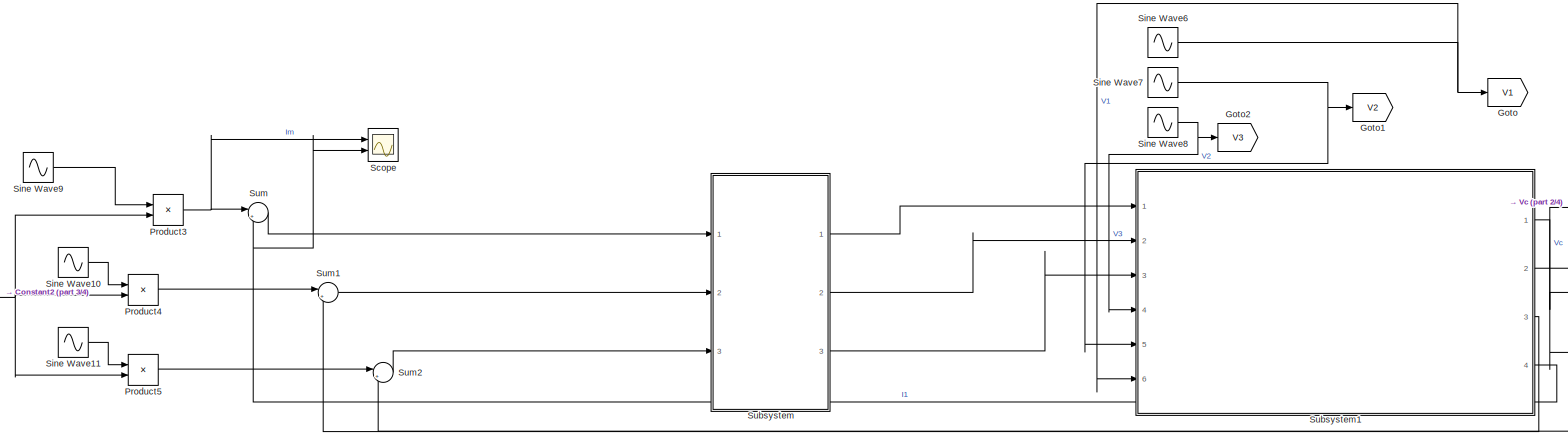
[diagram: root canvas - part 1/4, center side, full height]
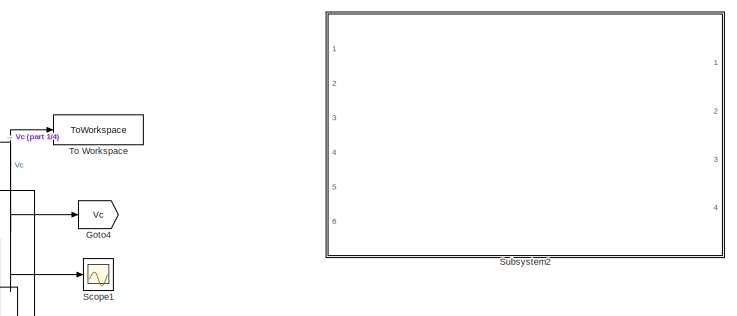
[diagram: root canvas - part 2/4, middle right region]
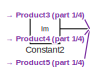
[diagram: root canvas - part 3/4, bottom left region]
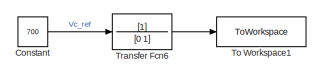
[diagram: root canvas - part 4/4, bottom left region]
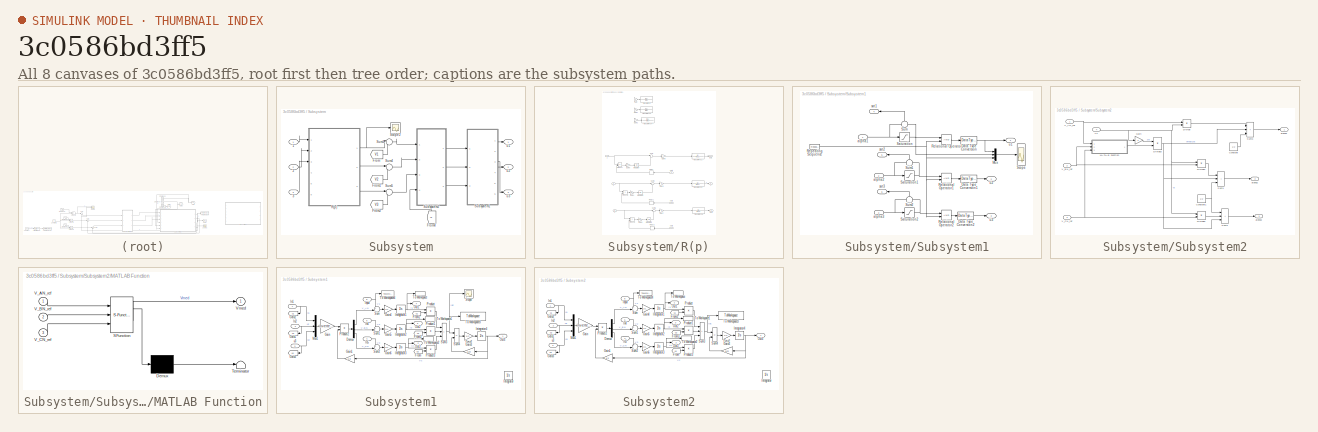
[diagram: thumbnail index - all 8 canvases of the model, root first then tree order]
MODEL slx_3c0586bd3ff5
KIND model
CONFIG AbsTol = auto
CONFIG EnableMultiTasking = off
CONFIG FixedStep = 1e-6
CONFIG MaxStep = auto
CONFIG MinStep = auto
CONFIG RelTol = 1e-3
CONFIG SampleTimeConstraint = Unconstrained
CONFIG Solver = ode8
CONFIG SolverName = ode8
CONFIG StartTime = 0.0
CONFIG StopTime = 0.1
BLOCK [Constant] Constant
  Commented = on
  Value = 700
BLOCK [Constant] Constant2
  Value = Im
BLOCK [Goto] Goto
  GotoTag = V1
BLOCK [Goto] Goto1
  GotoTag = V2
BLOCK [Goto] Goto2
  GotoTag = V3
BLOCK [Goto] Goto4
  GotoTag = Vc
BLOCK [Product] Product3
  Ports = [2, 1]
BLOCK [Product] Product4
  Ports = [2, 1]
BLOCK [Product] Product5
  Ports = [2, 1]
BLOCK [Scope] Scope
  Floating = off
  NumInputPorts = 2
  Ports = [2]
  ScopeSpecificationString = Simulink.scopes.TimeScopeBlockCfg('CurrentConfiguration', extmgr.ConfigurationSet(extmgr.Configuration('Core','General UI',true),extmgr.Configuration('Core','Source UI',true),extmgr.Configuration('Sources','WiredSimulink',true),extmgr.Configuration('Visuals','Time Domain',true,'SerializedDisplays',{struct('MinYLimReal','-133.0737','MaxYLimReal','133.19821','YLabelReal','','MinYLimMag',' 0.00000','...<+1454ch>
BLOCK [Scope] Scope1
  Floating = off
  NumInputPorts = 1
  Ports = [1]
  ScopeSpecificationString = Simulink.scopes.TimeScopeBlockCfg('CurrentConfiguration', extmgr.ConfigurationSet(extmgr.Configuration('Core','General UI',true),extmgr.Configuration('Core','Source UI',true),extmgr.Configuration('Sources','WiredSimulink',true,'DataLoggingVariableName','ScopeData1'),extmgr.Configuration('Visuals','Time Domain',true,'SerializedDisplays',{struct('MinYLimReal','487.52145','MaxYLimReal','729.00604','Y...<+1445ch>
BLOCK [Sin] Sine Wave10
  Frequency = 2*50*pi
  Phase = -2*pi/3
  Ports = [0, 1]
  SampleTime = 0
BLOCK [Sin] Sine Wave11
  Frequency = 2*50*pi
  Phase = -4*pi/3
  Ports = [0, 1]
  SampleTime = 0
BLOCK [Sin] Sine Wave6
  Amplitude = V*sqrt(2)
  Frequency = 2*50*pi
  Ports = [0, 1]
  SampleTime = 0
BLOCK [Sin] Sine Wave7
  Amplitude = V*sqrt(2)
  Frequency = 2*50*pi
  Phase = -2*pi/3
  Ports = [0, 1]
  SampleTime = 0
BLOCK [Sin] Sine Wave8
  Amplitude = V*sqrt(2)
  Frequency = 2*50*pi
  Phase = -4*pi/3
  Ports = [0, 1]
  SampleTime = 0
BLOCK [Sin] Sine Wave9
  Frequency = 2*50*pi
  Ports = [0, 1]
  SampleTime = 0
BLOCK [SubSystem] Subsystem
  Ports = [3, 3]
BLOCK [Inport] Subsystem/1
BLOCK [Inport] Subsystem/2
  Port = 2
BLOCK [Inport] Subsystem/3
  Port = 3
BLOCK [From] Subsystem/From
  GotoTag = V1
BLOCK [From] Subsystem/From1
  GotoTag = V2
BLOCK [From] Subsystem/From2
  GotoTag = V3
BLOCK [From] Subsystem/From4
  GotoTag = Vc
BLOCK [SubSystem] Subsystem/R(p)
  Ports = [6, 3]
BLOCK [Inport] Subsystem/R(p)/1
BLOCK [Inport] Subsystem/R(p)/2
  Port = 2
BLOCK [Inport] Subsystem/R(p)/3
  Port = 3
BLOCK [Outport] Subsystem/R(p)/4
  IconDisplay = Signal name
  Port = 2
BLOCK [Gain] Subsystem/R(p)/Gain
  Commented = on
  Gain = K
BLOCK [Gain] Subsystem/R(p)/Gain1
  Commented = on
  Gain = K
BLOCK [Gain] Subsystem/R(p)/Gain2
  Commented = on
  Gain = K
BLOCK [Gain] Subsystem/R(p)/Gain3
  Gain = K
BLOCK [Gain] Subsystem/R(p)/Gain4
  Gain = 1/Ti
BLOCK [Gain] Subsystem/R(p)/Gain5
  Gain = K
BLOCK [Gain] Subsystem/R(p)/Gain6
  Gain = 1/Ti
BLOCK [Gain] Subsystem/R(p)/Gain7
  Gain = K
BLOCK [Gain] Subsystem/R(p)/Gain8
  Gain = 1/Ti
BLOCK [Integrator] Subsystem/R(p)/Integrator
  InitialCondition = 1
  Ports = [1, 1]
BLOCK [Integrator] Subsystem/R(p)/Integrator1
  InitialCondition = 1
  Ports = [1, 1]
BLOCK [Integrator] Subsystem/R(p)/Integrator2
  Ports = [1, 1]
BLOCK [Outport] Subsystem/R(p)/Out1
BLOCK [Outport] Subsystem/R(p)/Out3
  Port = 3
BLOCK [Product] Subsystem/R(p)/Product
  Ports = [2, 1]
BLOCK [Product] Subsystem/R(p)/Product1
  Ports = [2, 1]
BLOCK [Product] Subsystem/R(p)/Product3
  Ports = [2, 1]
BLOCK [Relay] Subsystem/R(p)/Relay
  OffSwitchValue = -1e-4
  OnSwitchValue = 1e-4
BLOCK [Relay] Subsystem/R(p)/Relay1
  OffSwitchValue = -1e-4
  OnSwitchValue = 1e-4
BLOCK [Relay] Subsystem/R(p)/Relay2
  OffSwitchValue = -1e-4
  OnSwitchValue = 1e-4
BLOCK [Sum] Subsystem/R(p)/Sum
  Inputs = |++
  Ports = [2, 1]
BLOCK [Sum] Subsystem/R(p)/Sum3
  Inputs = |++
  Ports = [2, 1]
BLOCK [Sum] Subsystem/R(p)/Sum6
  Inputs = |++
  Ports = [2, 1]
BLOCK [TransferFcn] Subsystem/R(p)/Transfer Fcn
  Commented = on
  Denominator = [Ti 0]
  Numerator = [Ti 1]
BLOCK [TransferFcn] Subsystem/R(p)/Transfer Fcn1
  Denominator = [Ta 1]
BLOCK [TransferFcn] Subsystem/R(p)/Transfer Fcn2
  Commented = on
  Denominator = [Ti 0]
  Numerator = [Ti 1]
BLOCK [TransferFcn] Subsystem/R(p)/Transfer Fcn3
  Denominator = [Ta 1]
BLOCK [TransferFcn] Subsystem/R(p)/Transfer Fcn4
  Commented = on
  Denominator = [Ti 0]
  Numerator = [Ti 1]
BLOCK [TransferFcn] Subsystem/R(p)/Transfer Fcn5
  Denominator = [Ta 1]
BLOCK [Inport] Subsystem/R(p)/sat1
  Port = 6
BLOCK [Inport] Subsystem/R(p)/sat2
  Port = 5
BLOCK [Inport] Subsystem/R(p)/sat3
  Port = 4
BLOCK [Scope] Subsystem/Scope2
  Floating = off
  NumInputPorts = 1
  Ports = [1]
  ScopeSpecificationString = Simulink.scopes.TimeScopeBlockCfg('CurrentConfiguration', extmgr.ConfigurationSet(extmgr.Configuration('Core','General UI',true),extmgr.Configuration('Core','Source UI',true),extmgr.Configuration('Sources','WiredSimulink',true,'DataLoggingVariableName','ScopeData3'),extmgr.Configuration('Visuals','Time Domain',true,'SerializedDisplays',{struct('MinYLimReal','-161.67797','MaxYLimReal','125.99894','...<+1447ch>
BLOCK [SubSystem] Subsystem/Subsystem1
  Ports = [3, 6]
BLOCK [DataTypeConversion] Subsystem/Subsystem1/Data Type Conversion
  RndMeth = Floor
  SaturateOnIntegerOverflow = off
BLOCK [DataTypeConversion] Subsystem/Subsystem1/Data Type Conversion1
  RndMeth = Floor
  SaturateOnIntegerOverflow = off
BLOCK [DataTypeConversion] Subsystem/Subsystem1/Data Type Conversion2
  RndMeth = Floor
  SaturateOnIntegerOverflow = off
BLOCK [Mux] Subsystem/Subsystem1/Mux
  DisplayOption = bar
  Inputs = 3
  Ports = [3, 1]
BLOCK [RelationalOperator] Subsystem/Subsystem1/Relational Operator
  InputSameDT = off
  OutDataTypeStr = boolean
  Ports = [2, 1]
  RndMeth = Simplest
BLOCK [RelationalOperator] Subsystem/Subsystem1/Relational Operator1
  InputSameDT = off
  OutDataTypeStr = boolean
  Ports = [2, 1]
  RndMeth = Simplest
BLOCK [RelationalOperator] Subsystem/Subsystem1/Relational Operator2
  InputSameDT = off
  OutDataTypeStr = boolean
  Ports = [2, 1]
  RndMeth = Simplest
BLOCK [Reference] Subsystem/Subsystem1/Repeating Sequence  REF=simulink/Sources/Repeating
Sequence
  Ports = [0, 1]
  SourceBlock = simulink/Sources/Repeating\nSequence
  SourceType = Repeating table
BLOCK [Saturate] Subsystem/Subsystem1/Saturation
  LowerLimit = 0
  UpperLimit = 1
BLOCK [Saturate] Subsystem/Subsystem1/Saturation1
  LowerLimit = 0
  UpperLimit = 1
BLOCK [Saturate] Subsystem/Subsystem1/Saturation2
  LowerLimit = 0
  UpperLimit = 1
BLOCK [Scope] Subsystem/Subsystem1/Scope
  Floating = off
  NumInputPorts = 1
  Ports = [1]
  ScopeSpecificationString = Simulink.scopes.TimeScopeBlockCfg('CurrentConfiguration', extmgr.ConfigurationSet(extmgr.Configuration('Core','General UI',true),extmgr.Configuration('Core','Source UI',true),extmgr.Configuration('Sources','WiredSimulink',true,'DataLoggingVariableName','ScopeData2'),extmgr.Configuration('Visuals','Time Domain',true,'SerializedDisplays',{struct('MinYLimReal','-0.125','MaxYLimReal','1.125','YLabelRe...<+1537ch>
BLOCK [Sum] Subsystem/Subsystem1/Sum
  Inputs = +-
  Ports = [2, 1]
BLOCK [Sum] Subsystem/Subsystem1/Sum1
  Inputs = +-
  Ports = [2, 1]
BLOCK [Sum] Subsystem/Subsystem1/Sum2
  Inputs = +-
  Ports = [2, 1]
BLOCK [Inport] Subsystem/Subsystem1/alpha1
BLOCK [Inport] Subsystem/Subsystem1/alpha2
  Port = 2
BLOCK [Inport] Subsystem/Subsystem1/alpha3
  Port = 3
BLOCK [Outport] Subsystem/Subsystem1/sat1
  Port = 4
BLOCK [Outport] Subsystem/Subsystem1/sat2
  Port = 5
BLOCK [Outport] Subsystem/Subsystem1/sat3
  Port = 6
BLOCK [Outport] Subsystem/Subsystem1/u1
BLOCK [Outport] Subsystem/Subsystem1/u2
  Port = 2
BLOCK [Outport] Subsystem/Subsystem1/u3
  Port = 3
BLOCK [SubSystem] Subsystem/Subsystem2
  Ports = [4, 3]
BLOCK [Constant] Subsystem/Subsystem2/Constant
  Value = 1/2
BLOCK [Constant] Subsystem/Subsystem2/Constant1
  Value = 1/2
BLOCK [Product] Subsystem/Subsystem2/Divide
  Inputs = */
  Ports = [2, 1]
BLOCK [Product] Subsystem/Subsystem2/Divide1
  Inputs = /*
  Ports = [2, 1]
BLOCK [Product] Subsystem/Subsystem2/Divide2
  Inputs = /*
  Ports = [2, 1]
BLOCK [Product] Subsystem/Subsystem2/Divide3
  Inputs = /*
  Ports = [2, 1]
BLOCK [Gain] Subsystem/Subsystem2/Gain
  Gain = 2
BLOCK [SubSystem] Subsystem/Subsystem2/MATLAB Function
  ErrorFcn = Stateflow.Translate.translate
  PermitHierarchicalResolution = ExplicitOnly
  Ports = [3, 1]
  SFBlockType = MATLAB Function
  TreatAsAtomicUnit = on
BLOCK [Demux] Subsystem/Subsystem2/MATLAB Function/ Demux 
  Outputs = 1
  Ports = [1, 1]
BLOCK [S-Function] Subsystem/Subsystem2/MATLAB Function/ SFunction 
  EnableBusSupport = off
  FunctionName = sf_sfun
  PortCounts = [3 2]
  Ports = [3, 2]
  SFcnIsStateOwnerBlock = off
  SFunctionDeploymentMode = off
  Tag = Stateflow S-Function Redresseur_MLI_3Ph_MLI_antiwindup_relay 2
BLOCK [Terminator] Subsystem/Subsystem2/MATLAB Function/ Terminator 
BLOCK [Inport] Subsystem/Subsystem2/MATLAB Function/V_AN_ref
BLOCK [Inport] Subsystem/Subsystem2/MATLAB Function/V_BN_ref
  Port = 2
BLOCK [Inport] Subsystem/Subsystem2/MATLAB Function/V_CN_ref
  Port = 3
BLOCK [Outport] Subsystem/Subsystem2/MATLAB Function/Vmed
BLOCK [Sum] Subsystem/Subsystem2/Sum1
  IconShape = rectangular
  Inputs = +++
  Ports = [3, 1]
BLOCK [Sum] Subsystem/Subsystem2/Sum2
  IconShape = rectangular
  Inputs = +++
  Ports = [3, 1]
BLOCK [Sum] Subsystem/Subsystem2/Sum3
  IconShape = rectangular
  Inputs = +++
  Ports = [3, 1]
BLOCK [Inport] Subsystem/Subsystem2/V_AN_ref
BLOCK [Inport] Subsystem/Subsystem2/V_BN_ref
  Port = 2
BLOCK [Inport] Subsystem/Subsystem2/V_CN_ref
  Port = 3
BLOCK [Inport] Subsystem/Subsystem2/Vc
  Port = 4
BLOCK [Outport] Subsystem/Subsystem2/alpha1
BLOCK [Outport] Subsystem/Subsystem2/alpha2
  Port = 2
BLOCK [Outport] Subsystem/Subsystem2/alpha3
  Port = 3
BLOCK [Sum] Subsystem/Sum3
  Inputs = |-+
  Ports = [2, 1]
BLOCK [Sum] Subsystem/Sum4
  Inputs = |-+
  Ports = [2, 1]
BLOCK [Sum] Subsystem/Sum5
  Inputs = |-+
  Ports = [2, 1]
BLOCK [Outport] Subsystem/u1
BLOCK [Outport] Subsystem/u2
  Port = 2
BLOCK [Outport] Subsystem/u3
  Port = 3
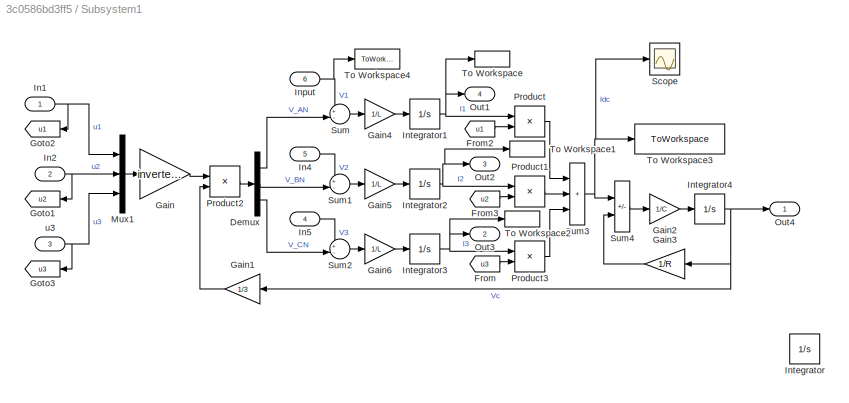
BLOCK [SubSystem] Subsystem1
  Ports = [6, 4]
BLOCK [Demux] Subsystem1/Demux
  Outputs = 3
  Ports = [1, 3]
BLOCK [From] Subsystem1/From
  GotoTag = u3
BLOCK [From] Subsystem1/From2
  GotoTag = u1
BLOCK [From] Subsystem1/From3
  GotoTag = u2
BLOCK [Gain] Subsystem1/Gain
  Gain = inverter_matrix
  Multiplication = Matrix(K*u)
BLOCK [Gain] Subsystem1/Gain1
  Gain = 1/3
BLOCK [Gain] Subsystem1/Gain2
  Gain = 1/C
BLOCK [Gain] Subsystem1/Gain3
  Gain = 1/R
BLOCK [Gain] Subsystem1/Gain4
  Gain = 1/L
BLOCK [Gain] Subsystem1/Gain5
  Gain = 1/L
BLOCK [Gain] Subsystem1/Gain6
  Gain = 1/L
BLOCK [Goto] Subsystem1/Goto1
  GotoTag = u2
BLOCK [Goto] Subsystem1/Goto2
  GotoTag = u1
BLOCK [Goto] Subsystem1/Goto3
  GotoTag = u3
BLOCK [Inport] Subsystem1/In1
  IconDisplay = Signal name
BLOCK [Inport] Subsystem1/In2
  IconDisplay = Signal name
  Port = 2
BLOCK [Inport] Subsystem1/In4
  IconDisplay = Signal name
  Port = 5
BLOCK [Inport] Subsystem1/In5
  IconDisplay = Signal name
  Port = 4
BLOCK [Inport] Subsystem1/Input
  IconDisplay = Signal name
  Port = 6
BLOCK [Integrator] Subsystem1/Integrator
  Commented = on
  LimitOutput = on
  LowerSaturationLimit = 0
  Ports = [1, 1]
BLOCK [Integrator] Subsystem1/Integrator1
  Ports = [1, 1]
BLOCK [Integrator] Subsystem1/Integrator2
  Ports = [1, 1]
BLOCK [Integrator] Subsystem1/Integrator3
  Ports = [1, 1]
BLOCK [Integrator] Subsystem1/Integrator4
  InitialCondition = V*sqrt(2)*sqrt(3)
  Ports = [1, 1]
BLOCK [Mux] Subsystem1/Mux1
  DisplayOption = bar
  Inputs = 3
  Ports = [3, 1]
BLOCK [Outport] Subsystem1/Out1
  IconDisplay = Signal name
  Port = 4
BLOCK [Outport] Subsystem1/Out2
  IconDisplay = Signal name
  Port = 3
BLOCK [Outport] Subsystem1/Out3
  IconDisplay = Signal name
  Port = 2
BLOCK [Outport] Subsystem1/Out4
  IconDisplay = Signal name
BLOCK [Product] Subsystem1/Product
  Ports = [2, 1]
BLOCK [Product] Subsystem1/Product1
  Ports = [2, 1]
BLOCK [Product] Subsystem1/Product2
  Ports = [2, 1]
BLOCK [Product] Subsystem1/Product3
  Ports = [2, 1]
BLOCK [Scope] Subsystem1/Scope
  Floating = off
  NumInputPorts = 1
  Ports = [1]
  ScopeSpecificationString = Simulink.scopes.TimeScopeBlockCfg('CurrentConfiguration', extmgr.ConfigurationSet(extmgr.Configuration('Core','General UI',true),extmgr.Configuration('Core','Source UI',true),extmgr.Configuration('Sources','WiredSimulink',true,'DataLoggingVariableName','ScopeData1'),extmgr.Configuration('Visuals','Time Domain',true,'SerializedDisplays',{struct('MinYLimReal','-54.69405','MaxYLimReal','111.69474','Y...<+1443ch>
BLOCK [Sum] Subsystem1/Sum
  Inputs = +-|
  Ports = [2, 1]
BLOCK [Sum] Subsystem1/Sum1
  Inputs = +-|
  Ports = [2, 1]
BLOCK [Sum] Subsystem1/Sum2
  Inputs = +-|
  Ports = [2, 1]
BLOCK [Sum] Subsystem1/Sum3
  IconShape = rectangular
  Inputs = +++
  Ports = [3, 1]
BLOCK [Sum] Subsystem1/Sum4
  IconShape = rectangular
  Inputs = +-
  Ports = [2, 1]
BLOCK [ToWorkspace] Subsystem1/To Workspace
  FixptAsFi = on
  MaxDataPoints = inf
  Ports = [1]
  SampleTime = -1
  SaveFormat = Timeseries
  VariableName = I1
BLOCK [ToWorkspace] Subsystem1/To Workspace1
  FixptAsFi = on
  MaxDataPoints = inf
  Ports = [1]
  SampleTime = -1
  SaveFormat = Timeseries
  VariableName = I2
BLOCK [ToWorkspace] Subsystem1/To Workspace2
  FixptAsFi = on
  MaxDataPoints = inf
  Ports = [1]
  SampleTime = -1
  SaveFormat = Timeseries
  VariableName = I3
BLOCK [ToWorkspace] Subsystem1/To Workspace3
  FixptAsFi = on
  MaxDataPoints = inf
  Ports = [1]
  SampleTime = -1
  SaveFormat = Timeseries
  VariableName = Idc
BLOCK [ToWorkspace] Subsystem1/To Workspace4
  FixptAsFi = on
  MaxDataPoints = inf
  Ports = [1]
  SampleTime = -1
  SaveFormat = Timeseries
  VariableName = V1
BLOCK [Inport] Subsystem1/u3
  IconDisplay = Signal name
  Port = 3
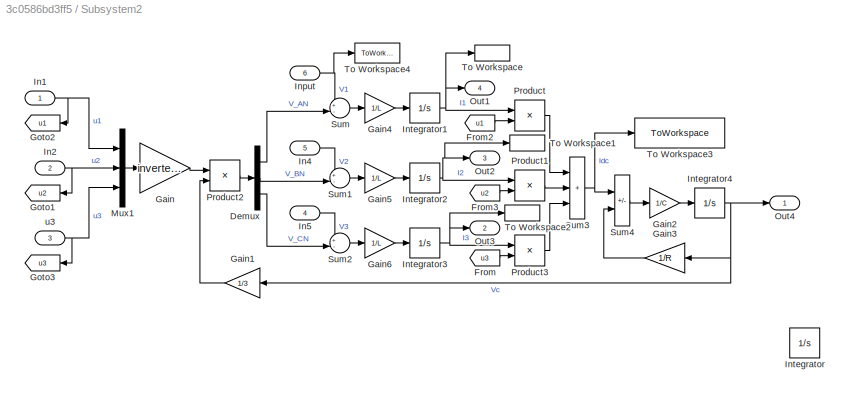
BLOCK [SubSystem] Subsystem2
  Commented = on
  Ports = [6, 4]
BLOCK [Demux] Subsystem2/Demux
  Outputs = 3
  Ports = [1, 3]
BLOCK [From] Subsystem2/From
  GotoTag = u3
BLOCK [From] Subsystem2/From2
  GotoTag = u1
BLOCK [From] Subsystem2/From3
  GotoTag = u2
BLOCK [Gain] Subsystem2/Gain
  Gain = inverter_matrix
  Multiplication = Matrix(K*u)
BLOCK [Gain] Subsystem2/Gain1
  Gain = 1/3
BLOCK [Gain] Subsystem2/Gain2
  Gain = 1/C
BLOCK [Gain] Subsystem2/Gain3
  Gain = 1/R
BLOCK [Gain] Subsystem2/Gain4
  Gain = 1/L
BLOCK [Gain] Subsystem2/Gain5
  Gain = 1/L
BLOCK [Gain] Subsystem2/Gain6
  Gain = 1/L
BLOCK [Goto] Subsystem2/Goto1
  GotoTag = u2
BLOCK [Goto] Subsystem2/Goto2
  GotoTag = u1
BLOCK [Goto] Subsystem2/Goto3
  GotoTag = u3
BLOCK [Inport] Subsystem2/In1
  IconDisplay = Signal name
BLOCK [Inport] Subsystem2/In2
  IconDisplay = Signal name
  Port = 2
BLOCK [Inport] Subsystem2/In4
  IconDisplay = Signal name
  Port = 5
BLOCK [Inport] Subsystem2/In5
  IconDisplay = Signal name
  Port = 4
BLOCK [Inport] Subsystem2/Input
  IconDisplay = Signal name
  Port = 6
BLOCK [Integrator] Subsystem2/Integrator
  Commented = on
  LimitOutput = on
  LowerSaturationLimit = 0
  Ports = [1, 1]
BLOCK [Integrator] Subsystem2/Integrator1
  Ports = [1, 1]
BLOCK [Integrator] Subsystem2/Integrator2
  Ports = [1, 1]
BLOCK [Integrator] Subsystem2/Integrator3
  Ports = [1, 1]
BLOCK [Integrator] Subsystem2/Integrator4
  InitialCondition = V*sqrt(2)*sqrt(3)
  Ports = [1, 1]
BLOCK [Mux] Subsystem2/Mux1
  DisplayOption = bar
  Inputs = 3
  Ports = [3, 1]
BLOCK [Outport] Subsystem2/Out1
  IconDisplay = Signal name
  Port = 4
BLOCK [Outport] Subsystem2/Out2
  IconDisplay = Signal name
  Port = 3
BLOCK [Outport] Subsystem2/Out3
  IconDisplay = Signal name
  Port = 2
BLOCK [Outport] Subsystem2/Out4
  IconDisplay = Signal name
BLOCK [Product] Subsystem2/Product
  Ports = [2, 1]
BLOCK [Product] Subsystem2/Product1
  Ports = [2, 1]
BLOCK [Product] Subsystem2/Product2
  Ports = [2, 1]
BLOCK [Product] Subsystem2/Product3
  Ports = [2, 1]
BLOCK [Sum] Subsystem2/Sum
  Inputs = +-|
  Ports = [2, 1]
BLOCK [Sum] Subsystem2/Sum1
  Inputs = +-|
  Ports = [2, 1]
BLOCK [Sum] Subsystem2/Sum2
  Inputs = +-|
  Ports = [2, 1]
BLOCK [Sum] Subsystem2/Sum3
  IconShape = rectangular
  Inputs = +++
  Ports = [3, 1]
BLOCK [Sum] Subsystem2/Sum4
  IconShape = rectangular
  Inputs = +-
  Ports = [2, 1]
BLOCK [ToWorkspace] Subsystem2/To Workspace
  FixptAsFi = on
  MaxDataPoints = inf
  Ports = [1]
  SampleTime = -1
  SaveFormat = Timeseries
  VariableName = I1
BLOCK [ToWorkspace] Subsystem2/To Workspace1
  FixptAsFi = on
  MaxDataPoints = inf
  Ports = [1]
  SampleTime = -1
  SaveFormat = Timeseries
  VariableName = I2
BLOCK [ToWorkspace] Subsystem2/To Workspace2
  FixptAsFi = on
  MaxDataPoints = inf
  Ports = [1]
  SampleTime = -1
  SaveFormat = Timeseries
  VariableName = I3
BLOCK [ToWorkspace] Subsystem2/To Workspace3
  FixptAsFi = on
  MaxDataPoints = inf
  Ports = [1]
  SampleTime = -1
  SaveFormat = Timeseries
  VariableName = Idc
BLOCK [ToWorkspace] Subsystem2/To Workspace4
  FixptAsFi = on
  MaxDataPoints = inf
  Ports = [1]
  SampleTime = -1
  SaveFormat = Timeseries
  VariableName = V1
BLOCK [Inport] Subsystem2/u3
  IconDisplay = Signal name
  Port = 3
BLOCK [Sum] Sum
  Inputs = |+-
  Ports = [2, 1]
BLOCK [Sum] Sum1
  Inputs = |+-
  Ports = [2, 1]
BLOCK [Sum] Sum2
  Inputs = |+-
  Ports = [2, 1]
BLOCK [ToWorkspace] To Workspace
  FixptAsFi = on
  MaxDataPoints = inf
  Ports = [1]
  SampleTime = -1
  SaveFormat = Timeseries
  VariableName = Vc_out
BLOCK [ToWorkspace] To Workspace1
  Commented = on
  FixptAsFi = on
  MaxDataPoints = inf
  Ports = [1]
  SampleTime = -1
  SaveFormat = Timeseries
  VariableName = Vc_ref
BLOCK [TransferFcn] Transfer Fcn6
  Commented = on
  Denominator = [0 1]
NET Constant2:1 -> Product3:2, Product4:2, Product5:2
LINE Constant:1 -> Transfer Fcn6:1
NET Product3:1 -> Scope:1, Sum:1
LINE Product4:1 -> Sum1:1
LINE Product5:1 -> Sum2:1
LINE Sine Wave10:1 -> Product4:1
LINE Sine Wave11:1 -> Product5:1
NET Sine Wave6:1 -> Goto:1, Subsystem1:6
NET Sine Wave7:1 -> Goto1:1, Subsystem1:5
NET Sine Wave8:1 -> Goto2:1, Subsystem1:4
LINE Sine Wave9:1 -> Product3:1
LINE Subsystem/1:1 -> Subsystem/R(p):1
LINE Subsystem/2:1 -> Subsystem/R(p):2
LINE Subsystem/3:1 -> Subsystem/R(p):3
LINE Subsystem/From1:1 -> Subsystem/Sum4:2
LINE Subsystem/From2:1 -> Subsystem/Sum5:2
LINE Subsystem/From4:1 -> Subsystem/Subsystem2:4
LINE Subsystem/From:1 -> Subsystem/Sum3:2
NET Subsystem/R(p)/1:1 -> Subsystem/R(p)/Product:1, Subsystem/R(p)/Sum:1
NET Subsystem/R(p)/2:1 -> Subsystem/R(p)/Product3:1, Subsystem/R(p)/Sum3:1
NET Subsystem/R(p)/3:1 -> Subsystem/R(p)/Product1:1, Subsystem/R(p)/Sum6:1
LINE Subsystem/R(p)/Gain1:1 -> Subsystem/R(p)/Transfer Fcn2:1
LINE Subsystem/R(p)/Gain2:1 -> Subsystem/R(p)/Transfer Fcn4:1
LINE Subsystem/R(p)/Gain3:1 -> Subsystem/R(p)/Transfer Fcn3:1
LINE Subsystem/R(p)/Gain4:1 -> Subsystem/R(p)/Integrator1:1
LINE Subsystem/R(p)/Gain5:1 -> Subsystem/R(p)/Transfer Fcn1:1
LINE Subsystem/R(p)/Gain6:1 -> Subsystem/R(p)/Integrator:1
LINE Subsystem/R(p)/Gain7:1 -> Subsystem/R(p)/Transfer Fcn5:1
LINE Subsystem/R(p)/Gain8:1 -> Subsystem/R(p)/Integrator2:1
LINE Subsystem/R(p)/Gain:1 -> Subsystem/R(p)/Transfer Fcn:1
LINE Subsystem/R(p)/Integrator1:1 -> Subsystem/R(p)/Sum3:2
LINE Subsystem/R(p)/Integrator2:1 -> Subsystem/R(p)/Sum6:2
LINE Subsystem/R(p)/Integrator:1 -> Subsystem/R(p)/Sum:2
LINE Subsystem/R(p)/Product1:1 -> Subsystem/R(p)/Gain8:1
LINE Subsystem/R(p)/Product3:1 -> Subsystem/R(p)/Gain4:1
LINE Subsystem/R(p)/Product:1 -> Subsystem/R(p)/Gain6:1
LINE Subsystem/R(p)/Relay1:1 -> Subsystem/R(p)/Product3:2
LINE Subsystem/R(p)/Relay2:1 -> Subsystem/R(p)/Product1:2
LINE Subsystem/R(p)/Relay:1 -> Subsystem/R(p)/Product:2
LINE Subsystem/R(p)/Sum3:1 -> Subsystem/R(p)/Gain3:1
LINE Subsystem/R(p)/Sum6:1 -> Subsystem/R(p)/Gain7:1
LINE Subsystem/R(p)/Sum:1 -> Subsystem/R(p)/Gain5:1
LINE Subsystem/R(p)/Transfer Fcn1:1 -> Subsystem/R(p)/Out1:1
LINE Subsystem/R(p)/Transfer Fcn3:1 -> Subsystem/R(p)/4:1
LINE Subsystem/R(p)/Transfer Fcn5:1 -> Subsystem/R(p)/Out3:1
LINE Subsystem/R(p)/sat1:1 -> Subsystem/R(p)/Relay:1
LINE Subsystem/R(p)/sat2:1 -> Subsystem/R(p)/Relay1:1
LINE Subsystem/R(p)/sat3:1 -> Subsystem/R(p)/Relay2:1
NET Subsystem/R(p):1 -> Subsystem/Scope2:1, Subsystem/Sum3:1
LINE Subsystem/R(p):2 -> Subsystem/Sum4:1
LINE Subsystem/R(p):3 -> Subsystem/Sum5:1
LINE Subsystem/Subsystem1/Data Type Conversion1:1 -> Subsystem/Subsystem1/u2:1
LINE Subsystem/Subsystem1/Data Type Conversion2:1 -> Subsystem/Subsystem1/u3:1
NET Subsystem/Subsystem1/Data Type Conversion:1 -> Subsystem/Subsystem1/Mux:1, Subsystem/Subsystem1/u1:1
LINE Subsystem/Subsystem1/Mux:1 -> Subsystem/Subsystem1/Scope:1
LINE Subsystem/Subsystem1/Relational Operator1:1 -> Subsystem/Subsystem1/Data Type Conversion1:1
LINE Subsystem/Subsystem1/Relational Operator2:1 -> Subsystem/Subsystem1/Data Type Conversion2:1
LINE Subsystem/Subsystem1/Relational Operator:1 -> Subsystem/Subsystem1/Data Type Conversion:1
NET Subsystem/Subsystem1/Repeating Sequence:1 -> Subsystem/Subsystem1/Mux:3, Subsystem/Subsystem1/Relational Operator1:2, Subsystem/Subsystem1/Relational Operator2:2, Subsystem/Subsystem1/Relational Operator:2
NET Subsystem/Subsystem1/Saturation1:1 -> Subsystem/Subsystem1/Relational Operator1:1, Subsystem/Subsystem1/Sum1:2
NET Subsystem/Subsystem1/Saturation2:1 -> Subsystem/Subsystem1/Relational Operator2:1, Subsystem/Subsystem1/Sum2:2
NET Subsystem/Subsystem1/Saturation:1 -> Subsystem/Subsystem1/Mux:2, Subsystem/Subsystem1/Relational Operator:1, Subsystem/Subsystem1/Sum:2
LINE Subsystem/Subsystem1/Sum1:1 -> Subsystem/Subsystem1/sat2:1
LINE Subsystem/Subsystem1/Sum2:1 -> Subsystem/Subsystem1/sat3:1
LINE Subsystem/Subsystem1/Sum:1 -> Subsystem/Subsystem1/sat1:1
NET Subsystem/Subsystem1/alpha1:1 -> Subsystem/Subsystem1/Saturation:1, Subsystem/Subsystem1/Sum:1
NET Subsystem/Subsystem1/alpha2:1 -> Subsystem/Subsystem1/Saturation1:1, Subsystem/Subsystem1/Sum1:1
NET Subsystem/Subsystem1/alpha3:1 -> Subsystem/Subsystem1/Saturation2:1, Subsystem/Subsystem1/Sum2:1
LINE Subsystem/Subsystem1:1 -> Subsystem/u1:1
LINE Subsystem/Subsystem1:2 -> Subsystem/u2:1
LINE Subsystem/Subsystem1:3 -> Subsystem/u3:1
NET Subsystem/Subsystem2/Constant1:1 -> Subsystem/Subsystem2/Sum1:3, Subsystem/Subsystem2/Sum2:1
LINE Subsystem/Subsystem2/Constant:1 -> Subsystem/Subsystem2/Sum3:3
LINE Subsystem/Subsystem2/Divide1:1 -> Subsystem/Subsystem2/Sum1:1
LINE Subsystem/Subsystem2/Divide2:1 -> Subsystem/Subsystem2/Sum2:2
NET Subsystem/Subsystem2/Divide3:1 -> Subsystem/Subsystem2/Sum1:2, Subsystem/Subsystem2/Sum2:3, Subsystem/Subsystem2/Sum3:2
LINE Subsystem/Subsystem2/Divide:1 -> Subsystem/Subsystem2/Sum3:1
LINE Subsystem/Subsystem2/Gain:1 -> Subsystem/Subsystem2/Divide3:1
LINE Subsystem/Subsystem2/MATLAB Function:1 -> Subsystem/Subsystem2/Divide3:2
LINE Subsystem/Subsystem2/Sum1:1 -> Subsystem/Subsystem2/alpha2:1
LINE Subsystem/Subsystem2/Sum2:1 -> Subsystem/Subsystem2/alpha3:1
LINE Subsystem/Subsystem2/Sum3:1 -> Subsystem/Subsystem2/alpha1:1
NET Subsystem/Subsystem2/V_AN_ref:1 -> Subsystem/Subsystem2/Divide:1, Subsystem/Subsystem2/MATLAB Function:1
NET Subsystem/Subsystem2/V_BN_ref:1 -> Subsystem/Subsystem2/Divide1:2, Subsystem/Subsystem2/MATLAB Function:2
NET Subsystem/Subsystem2/V_CN_ref:1 -> Subsystem/Subsystem2/Divide2:2, Subsystem/Subsystem2/MATLAB Function:3
NET Subsystem/Subsystem2/Vc:1 -> Subsystem/Subsystem2/Divide1:1, Subsystem/Subsystem2/Divide2:1, Subsystem/Subsystem2/Divide:2, Subsystem/Subsystem2/Gain:1
LINE Subsystem/Subsystem2:1 -> Subsystem/Subsystem1:1
LINE Subsystem/Subsystem2:2 -> Subsystem/Subsystem1:2
LINE Subsystem/Subsystem2:3 -> Subsystem/Subsystem1:3
LINE Subsystem/Sum3:1 -> Subsystem/Subsystem2:1
LINE Subsystem/Sum4:1 -> Subsystem/Subsystem2:2
LINE Subsystem/Sum5:1 -> Subsystem/Subsystem2:3
LINE Subsystem1/Demux:1 -> Subsystem1/Sum:2
LINE Subsystem1/Demux:2 -> Subsystem1/Sum1:2
LINE Subsystem1/Demux:3 -> Subsystem1/Sum2:2
LINE Subsystem1/From2:1 -> Subsystem1/Product:2
LINE Subsystem1/From3:1 -> Subsystem1/Product1:2
LINE Subsystem1/From:1 -> Subsystem1/Product3:2
LINE Subsystem1/Gain1:1 -> Subsystem1/Product2:2
LINE Subsystem1/Gain2:1 -> Subsystem1/Integrator4:1
LINE Subsystem1/Gain3:1 -> Subsystem1/Sum4:2
LINE Subsystem1/Gain4:1 -> Subsystem1/Integrator1:1
LINE Subsystem1/Gain5:1 -> Subsystem1/Integrator2:1
LINE Subsystem1/Gain6:1 -> Subsystem1/Integrator3:1
LINE Subsystem1/Gain:1 -> Subsystem1/Product2:1
NET Subsystem1/In1:1 -> Subsystem1/Goto2:1, Subsystem1/Mux1:1
NET Subsystem1/In2:1 -> Subsystem1/Goto1:1, Subsystem1/Mux1:2
LINE Subsystem1/In4:1 -> Subsystem1/Sum1:1
LINE Subsystem1/In5:1 -> Subsystem1/Sum2:1
NET Subsystem1/Input:1 -> Subsystem1/Sum:1, Subsystem1/To Workspace4:1
NET Subsystem1/Integrator1:1 -> Subsystem1/Out1:1, Subsystem1/Product:1, Subsystem1/To Workspace:1
NET Subsystem1/Integrator2:1 -> Subsystem1/Out2:1, Subsystem1/Product1:1, Subsystem1/To Workspace1:1
NET Subsystem1/Integrator3:1 -> Subsystem1/Out3:1, Subsystem1/Product3:1, Subsystem1/To Workspace2:1
NET Subsystem1/Integrator4:1 -> Subsystem1/Gain1:1, Subsystem1/Gain3:1, Subsystem1/Out4:1
LINE Subsystem1/Mux1:1 -> Subsystem1/Gain:1
LINE Subsystem1/Product1:1 -> Subsystem1/Sum3:2
LINE Subsystem1/Product2:1 -> Subsystem1/Demux:1
LINE Subsystem1/Product3:1 -> Subsystem1/Sum3:3
LINE Subsystem1/Product:1 -> Subsystem1/Sum3:1
LINE Subsystem1/Sum1:1 -> Subsystem1/Gain5:1
LINE Subsystem1/Sum2:1 -> Subsystem1/Gain6:1
NET Subsystem1/Sum3:1 -> Subsystem1/Scope:1, Subsystem1/Sum4:1, Subsystem1/To Workspace3:1
LINE Subsystem1/Sum4:1 -> Subsystem1/Gain2:1
LINE Subsystem1/Sum:1 -> Subsystem1/Gain4:1
NET Subsystem1/u3:1 -> Subsystem1/Goto3:1, Subsystem1/Mux1:3
NET Subsystem1:1 -> Goto4:1, Scope1:1, To Workspace:1
LINE Subsystem1:2 -> Sum2:2
LINE Subsystem1:3 -> Sum1:2
NET Subsystem1:4 -> Scope:2, Sum:2
LINE Subsystem2/Demux:1 -> Subsystem2/Sum:2
LINE Subsystem2/Demux:2 -> Subsystem2/Sum1:2
LINE Subsystem2/Demux:3 -> Subsystem2/Sum2:2
LINE Subsystem2/From2:1 -> Subsystem2/Product:2
LINE Subsystem2/From3:1 -> Subsystem2/Product1:2
LINE Subsystem2/From:1 -> Subsystem2/Product3:2
LINE Subsystem2/Gain1:1 -> Subsystem2/Product2:2
LINE Subsystem2/Gain2:1 -> Subsystem2/Integrator4:1
LINE Subsystem2/Gain3:1 -> Subsystem2/Sum4:2
LINE Subsystem2/Gain4:1 -> Subsystem2/Integrator1:1
LINE Subsystem2/Gain5:1 -> Subsystem2/Integrator2:1
LINE Subsystem2/Gain6:1 -> Subsystem2/Integrator3:1
LINE Subsystem2/Gain:1 -> Subsystem2/Product2:1
NET Subsystem2/In1:1 -> Subsystem2/Goto2:1, Subsystem2/Mux1:1
NET Subsystem2/In2:1 -> Subsystem2/Goto1:1, Subsystem2/Mux1:2
LINE Subsystem2/In4:1 -> Subsystem2/Sum1:1
LINE Subsystem2/In5:1 -> Subsystem2/Sum2:1
NET Subsystem2/Input:1 -> Subsystem2/Sum:1, Subsystem2/To Workspace4:1
NET Subsystem2/Integrator1:1 -> Subsystem2/Out1:1, Subsystem2/Product:1, Subsystem2/To Workspace:1
NET Subsystem2/Integrator2:1 -> Subsystem2/Out2:1, Subsystem2/Product1:1, Subsystem2/To Workspace1:1
NET Subsystem2/Integrator3:1 -> Subsystem2/Out3:1, Subsystem2/Product3:1, Subsystem2/To Workspace2:1
NET Subsystem2/Integrator4:1 -> Subsystem2/Gain1:1, Subsystem2/Gain3:1, Subsystem2/Out4:1
LINE Subsystem2/Mux1:1 -> Subsystem2/Gain:1
LINE Subsystem2/Product1:1 -> Subsystem2/Sum3:2
LINE Subsystem2/Product2:1 -> Subsystem2/Demux:1
LINE Subsystem2/Product3:1 -> Subsystem2/Sum3:3
LINE Subsystem2/Product:1 -> Subsystem2/Sum3:1
LINE Subsystem2/Sum1:1 -> Subsystem2/Gain5:1
LINE Subsystem2/Sum2:1 -> Subsystem2/Gain6:1
NET Subsystem2/Sum3:1 -> Subsystem2/Sum4:1, Subsystem2/To Workspace3:1
LINE Subsystem2/Sum4:1 -> Subsystem2/Gain2:1
LINE Subsystem2/Sum:1 -> Subsystem2/Gain4:1
NET Subsystem2/u3:1 -> Subsystem2/Goto3:1, Subsystem2/Mux1:3
LINE Subsystem:1 -> Subsystem1:1
LINE Subsystem:2 -> Subsystem1:2
LINE Subsystem:3 -> Subsystem1:3
LINE Sum1:1 -> Subsystem:2
LINE Sum2:1 -> Subsystem:3
LINE Sum:1 -> Subsystem:1
LINE Transfer Fcn6:1 -> To Workspace1:1
note: NET lines group one-source signal fan-out (src -> all destinations, sorted); 1:1 wires keep LINE
CHART Subsystem/Subsystem2/MATLAB Function states=1 transitions=1
  STATE_LABEL 'eML_blk_kernel()'
  STATE_LABEL 'SCRIPT:\nfunction Vmed = fcn(V_AN_ref,V_BN_ref,V_CN_ref)\n     V_set = [V_AN_ref V_BN_ref V_CN_ref];\nVmed= -(min(V_set) + max(V_set));\n'
